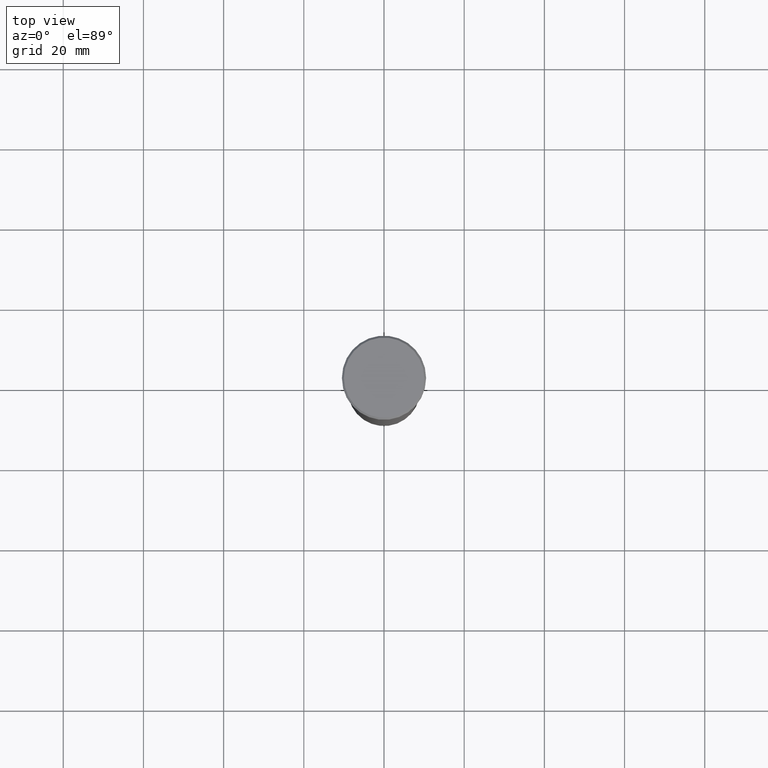
[diagram: clean part render]
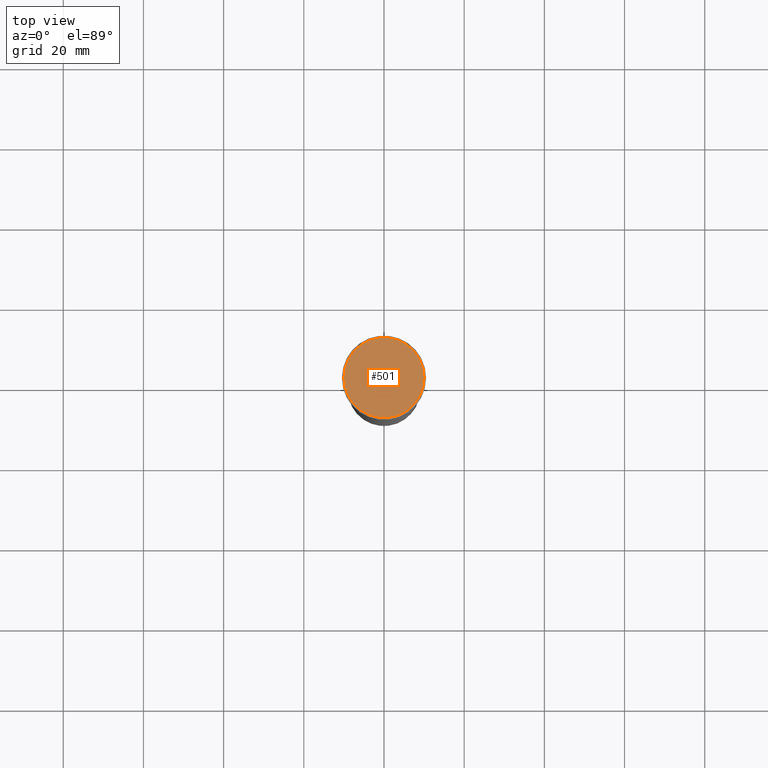
[diagram: same view with one face highlighted and labeled with its STEP entity id]
A machine part, top view. The second image highlights one B-rep face of the part: STEP entity #501.
In plain terms, the highlighted planar face has unit normal (0, -0, 1).
Its self-contained STEP definition (entity closure, byte-faithful):
#3 = CARTESIAN_POINT ( 'NONE',  ( 0.000000000000000000, 0.000000000000000000, 0.000000000000000000 ) ) ;
#45 = DIRECTION ( 'NONE',  ( 1.000000000000000000, 0.000000000000000000, 0.000000000000000000 ) ) ;
#67 = CARTESIAN_POINT ( 'NONE',  ( 0.000000000000000000, 0.000000000000000000, 0.000000000000000000 ) ) ;
#71 = CARTESIAN_POINT ( 'NONE',  ( 0.000000000000000000, 0.000000000000000000, 0.000000000000000000 ) ) ;
#72 = CIRCLE ( 'NONE', #347, 10.00000000000000178 ) ;
#118 = DIRECTION ( 'NONE',  ( -0.000000000000000000, -0.000000000000000000, 1.000000000000000000 ) ) ;
#127 = VERTEX_POINT ( 'NONE', #562 ) ;
#155 = ORIENTED_EDGE ( 'NONE', *, *, #371, .T. ) ;
#160 = CARTESIAN_POINT ( 'NONE',  ( 10.00000000000000178, 1.255262969126037241E-15, 0.000000000000000000 ) ) ;
#162 = FACE_OUTER_BOUND ( 'NONE', #304, .T. ) ;
#184 = DIRECTION ( 'NONE',  ( -0.000000000000000000, -0.000000000000000000, 1.000000000000000000 ) ) ;
#304 = EDGE_LOOP ( 'NONE', ( #155, #466 ) ) ;
#347 = AXIS2_PLACEMENT_3D ( 'NONE', #3, #184, #45 ) ;
#371 = EDGE_CURVE ( 'NONE', #127, #459, #475, .T. ) ;
#395 = DIRECTION ( 'NONE',  ( 1.000000000000000000, 0.000000000000000000, 0.000000000000000000 ) ) ;
#403 = DIRECTION ( 'NONE',  ( 1.000000000000000000, 0.000000000000000000, 0.000000000000000000 ) ) ;
#406 = AXIS2_PLACEMENT_3D ( 'NONE', #71, #118, #403 ) ;
#459 = VERTEX_POINT ( 'NONE', #160 ) ;
#466 = ORIENTED_EDGE ( 'NONE', *, *, #580, .T. ) ;
#475 = CIRCLE ( 'NONE', #406, 10.00000000000000178 ) ;
#493 = DIRECTION ( 'NONE',  ( 0.000000000000000000, -0.000000000000000000, 1.000000000000000000 ) ) ;
#501 = ADVANCED_FACE ( 'NONE', ( #162 ), #536, .T. ) ;
#536 = PLANE ( 'NONE',  #539 ) ;
#539 = AXIS2_PLACEMENT_3D ( 'NONE', #67, #493, #395 ) ;
#562 = CARTESIAN_POINT ( 'NONE',  ( -10.00000000000000178, 0.000000000000000000, 0.000000000000000000 ) ) ;
#580 = EDGE_CURVE ( 'NONE', #459, #127, #72, .T. ) ;